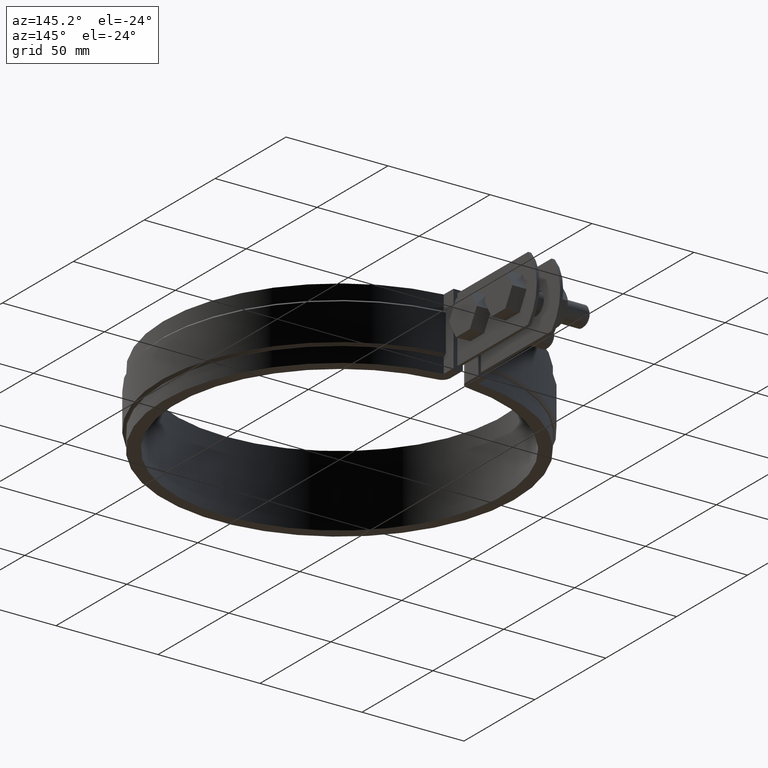
[diagram: clean part render]
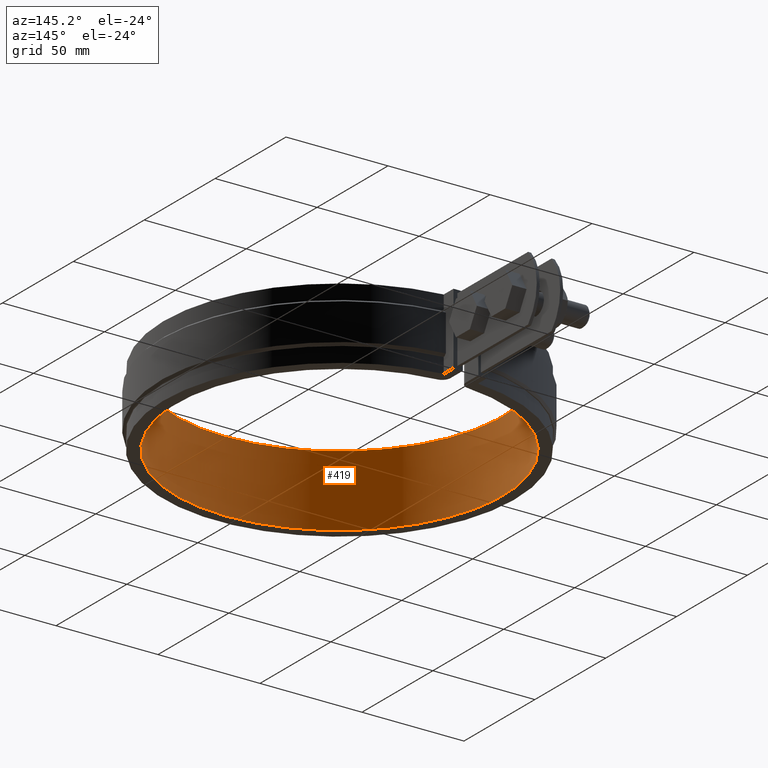
[diagram: same view with one face highlighted and labeled with its STEP entity id]
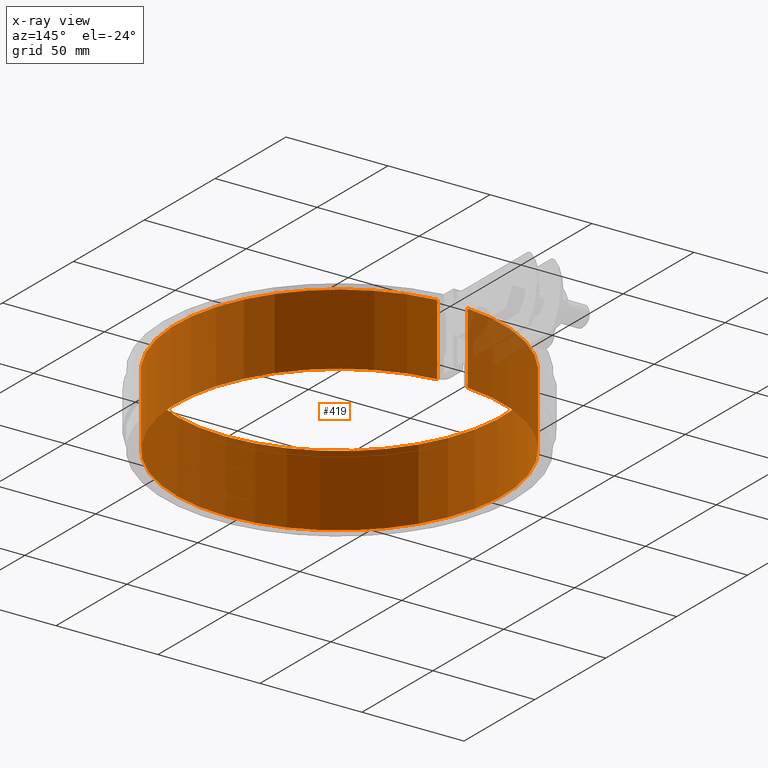
[diagram: x-ray of the same camera — body ghosted, the highlighted face saturated]
A machine part, auxiliary view. The second image highlights one B-rep face of the part: STEP entity #419.
The next image is the same camera in x-ray: the body ghosted, the highlighted face saturated — about 3% of this face is hidden behind the body in this view.
In plain terms, the highlighted cylindrical surface (partial cylindrical patch) has radius 80 mm, axis along (0, 0, -1).
Its self-contained STEP definition (entity closure, byte-faithful):
#419 = ADVANCED_FACE( '', ( #698 ), #699, .F. );
#698 = FACE_OUTER_BOUND( '', #1779, .T. );
#699 = CYLINDRICAL_SURFACE( '', #1780, 80.0000000000000 );
#1779 = EDGE_LOOP( '', ( #4211, #4212, #4213, #4214 ) );
#1780 = AXIS2_PLACEMENT_3D( '', #4215, #4216, #4217 );
#4211 = ORIENTED_EDGE( '', *, *, #4880, .F. );
#4212 = ORIENTED_EDGE( '', *, *, #4887, .F. );
#4213 = ORIENTED_EDGE( '', *, *, #4883, .T. );
#4214 = ORIENTED_EDGE( '', *, *, #4886, .T. );
#4215 = CARTESIAN_POINT( '', ( 0.000000000000000, 0.000000000000000, -33.5000000000000 ) );
#4216 = DIRECTION( '', ( 0.000000000000000, 0.000000000000000, -1.00000000000000 ) );
#4217 = DIRECTION( '', ( 0.000000000000000, 1.00000000000000, 0.000000000000000 ) );
#4880 = EDGE_CURVE( '', #5464, #5466, #5467, .T. );
#4883 = EDGE_CURVE( '', #5471, #5469, #5472, .T. );
#4886 = EDGE_CURVE( '', #5469, #5466, #5475, .T. );
#4887 = EDGE_CURVE( '', #5471, #5464, #5476, .T. );
#5464 = VERTEX_POINT( '', #8298 );
#5466 = VERTEX_POINT( '', #8300 );
#5467 = CIRCLE( '', #8301, 80.0000000000000 );
#5469 = VERTEX_POINT( '', #8303 );
#5471 = VERTEX_POINT( '', #8305 );
#5472 = CIRCLE( '', #8306, 80.0000000000000 );
#5475 = LINE( '', #8310, #8311 );
#5476 = LINE( '', #8312, #8313 );
#8298 = CARTESIAN_POINT( '', ( 7.42857142857145, 79.6543553519242, 1.50000000000000 ) );
#8300 = CARTESIAN_POINT( '', ( -7.42857142857141, 79.6543553519242, 1.50000000000000 ) );
#8301 = AXIS2_PLACEMENT_3D( '', #8968, #8969, #8970 );
#8303 = CARTESIAN_POINT( '', ( -7.42857142857141, 79.6543553519242, -33.5000000000000 ) );
#8305 = CARTESIAN_POINT( '', ( 7.42857142857145, 79.6543553519242, -33.5000000000000 ) );
#8306 = AXIS2_PLACEMENT_3D( '', #8977, #8978, #8979 );
#8310 = CARTESIAN_POINT( '', ( -7.42857142857141, 79.6543553519242, -33.5000000000000 ) );
#8311 = VECTOR( '', #8984, 1000.00000000000 );
#8312 = CARTESIAN_POINT( '', ( 7.42857142857145, 79.6543553519242, -33.5000000000000 ) );
#8313 = VECTOR( '', #8985, 1000.00000000000 );
#8968 = CARTESIAN_POINT( '', ( 0.000000000000000, 0.000000000000000, 1.50000000000000 ) );
#8969 = DIRECTION( '', ( 0.000000000000000, 0.000000000000000, -1.00000000000000 ) );
#8970 = DIRECTION( '', ( 1.00000000000000, 0.000000000000000, 0.000000000000000 ) );
#8977 = CARTESIAN_POINT( '', ( 0.000000000000000, 0.000000000000000, -33.5000000000000 ) );
#8978 = DIRECTION( '', ( 0.000000000000000, 0.000000000000000, -1.00000000000000 ) );
#8979 = DIRECTION( '', ( 1.00000000000000, 0.000000000000000, 0.000000000000000 ) );
#8984 = DIRECTION( '', ( 0.000000000000000, 0.000000000000000, 1.00000000000000 ) );
#8985 = DIRECTION( '', ( 0.000000000000000, 0.000000000000000, 1.00000000000000 ) );